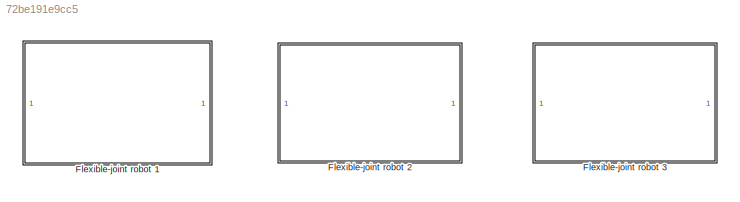
MODEL slx_72be191e9cc5
KIND model
CONFIG AbsTol = auto
CONFIG EnableMultiTasking = off
CONFIG FixedStep = auto
CONFIG MaxStep = auto
CONFIG MinStep = auto
CONFIG RelTol = 1e-4
CONFIG SampleTimeConstraint = Unconstrained
CONFIG SolverName = VariableStepAuto
CONFIG StartTime = 0.0
CONFIG StopTime = 10
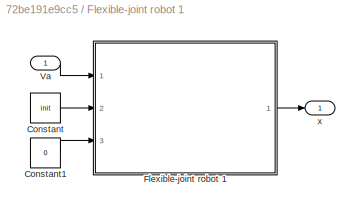
BLOCK [SubSystem] Flexible-joint robot 1
  Ports = [1, 1]
  RequestExecContextInheritance = off
BLOCK [Constant] Flexible-joint robot 1/Constant
  Value = init
BLOCK [Constant] Flexible-joint robot 1/Constant1
  Value = 0
BLOCK [ModelReference] Flexible-joint robot 1/Flexible-joint robot 1
  CopyOfModelProtected = on
  ModelNameDialog = Flexible_joint_robot_1
  ModelReferenceVersion = 1.63
  Ports = [3, 1]
BLOCK [Inport] Flexible-joint robot 1/Va
BLOCK [Outport] Flexible-joint robot 1/x
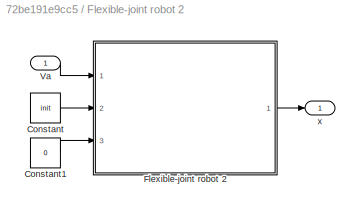
BLOCK [SubSystem] Flexible-joint robot 2
  Ports = [1, 1]
  RequestExecContextInheritance = off
BLOCK [Constant] Flexible-joint robot 2/Constant
  Value = init
BLOCK [Constant] Flexible-joint robot 2/Constant1
  Value = 0
BLOCK [ModelReference] Flexible-joint robot 2/Flexible-joint robot 2
  CopyOfModelProtected = on
  ModelNameDialog = Flexible_joint_robot_2
  ModelReferenceVersion = 1.64
  Ports = [3, 1]
BLOCK [Inport] Flexible-joint robot 2/Va
BLOCK [Outport] Flexible-joint robot 2/x
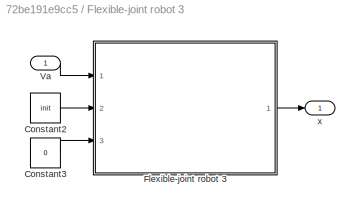
BLOCK [SubSystem] Flexible-joint robot 3
  Ports = [1, 1]
  RequestExecContextInheritance = off
BLOCK [Constant] Flexible-joint robot 3/Constant2
  Value = init
BLOCK [Constant] Flexible-joint robot 3/Constant3
  Value = 0
BLOCK [ModelReference] Flexible-joint robot 3/Flexible-joint robot 3
  CopyOfModelProtected = on
  ModelNameDialog = Flexible_joint_robot_3
  ModelReferenceVersion = 1.65
  Ports = [3, 1]
BLOCK [Inport] Flexible-joint robot 3/Va
BLOCK [Outport] Flexible-joint robot 3/x
LINE Flexible-joint robot 1/Constant1:1 -> Flexible-joint robot 1/Flexible-joint robot 1:3
LINE Flexible-joint robot 1/Constant:1 -> Flexible-joint robot 1/Flexible-joint robot 1:2
LINE Flexible-joint robot 1/Flexible-joint robot 1:1 -> Flexible-joint robot 1/x:1
LINE Flexible-joint robot 1/Va:1 -> Flexible-joint robot 1/Flexible-joint robot 1:1
LINE Flexible-joint robot 2/Constant1:1 -> Flexible-joint robot 2/Flexible-joint robot 2:3
LINE Flexible-joint robot 2/Constant:1 -> Flexible-joint robot 2/Flexible-joint robot 2:2
LINE Flexible-joint robot 2/Flexible-joint robot 2:1 -> Flexible-joint robot 2/x:1
LINE Flexible-joint robot 2/Va:1 -> Flexible-joint robot 2/Flexible-joint robot 2:1
LINE Flexible-joint robot 3/Constant2:1 -> Flexible-joint robot 3/Flexible-joint robot 3:2
LINE Flexible-joint robot 3/Constant3:1 -> Flexible-joint robot 3/Flexible-joint robot 3:3
LINE Flexible-joint robot 3/Flexible-joint robot 3:1 -> Flexible-joint robot 3/x:1
LINE Flexible-joint robot 3/Va:1 -> Flexible-joint robot 3/Flexible-joint robot 3:1
